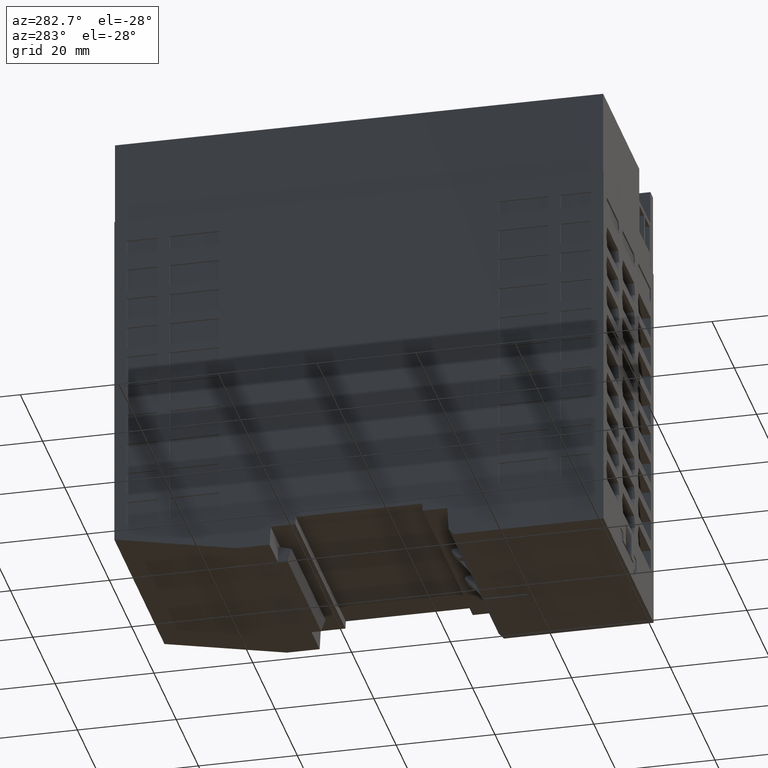
[diagram: clean part render]
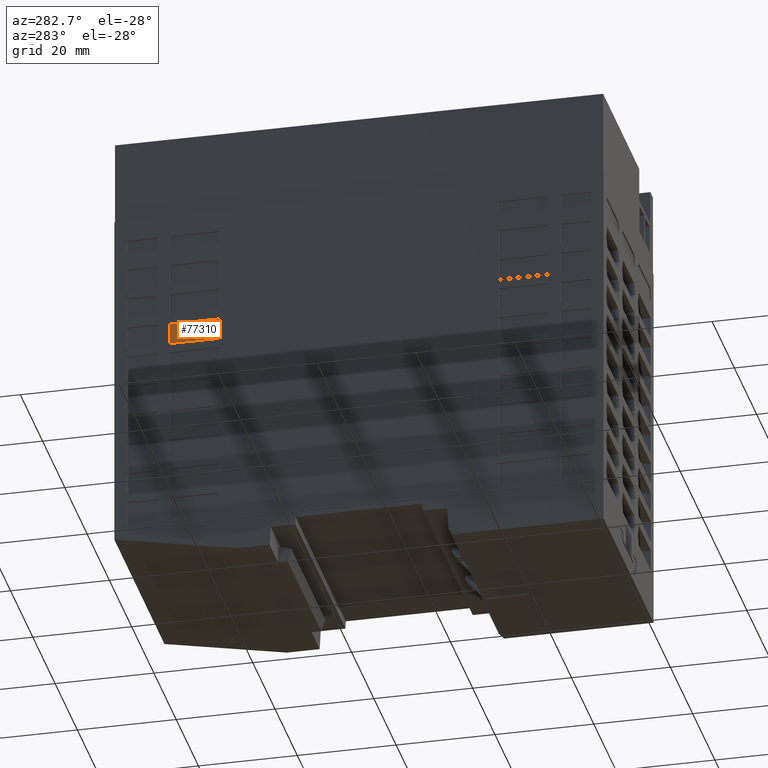
[diagram: same view with one face highlighted and labeled with its STEP entity id]
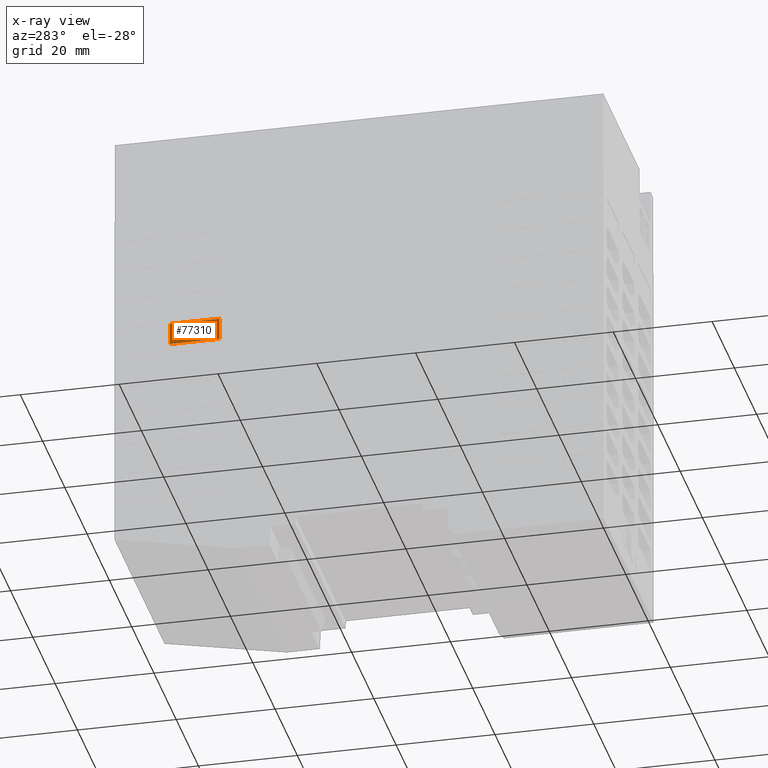
[diagram: x-ray of the same camera — body ghosted, the highlighted face saturated]
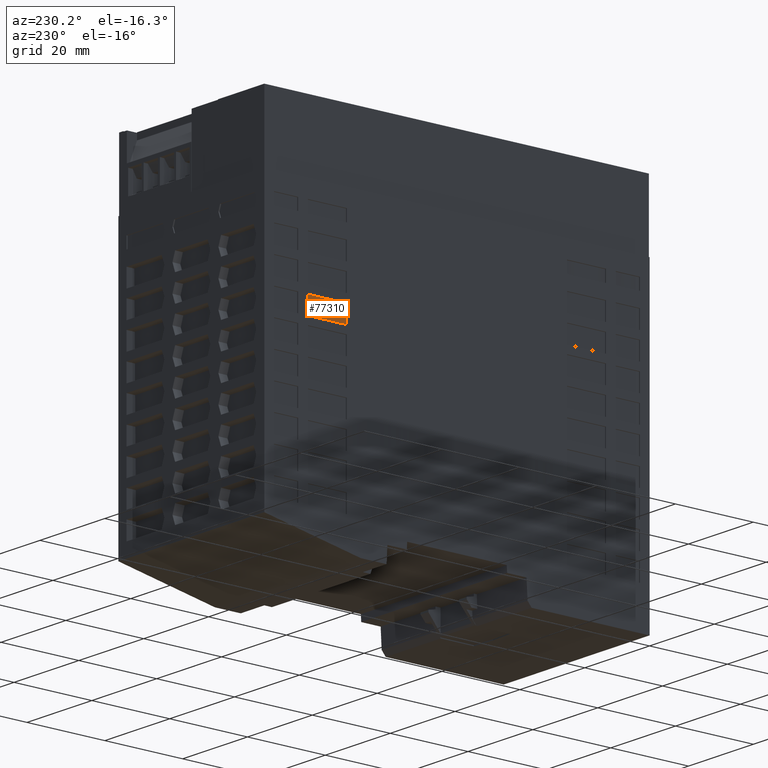
[diagram: same view with one face highlighted and labeled with its STEP entity id]
A machine part, auxiliary view. The second image highlights one B-rep face of the part: STEP entity #77310.
The next image is the same camera in x-ray: the body ghosted, the highlighted face saturated — about 0% of this face is hidden behind the body in this view.
A second angle (auxiliary view) of the same face is appended — the face is thin or edge-on in the first view.
In plain terms, the highlighted planar face has unit normal (-1, -0, -0).
Its self-contained STEP definition (entity closure, byte-faithful):
#76920=CARTESIAN_POINT('',(28.73,65.85,43.9));
#76930=DIRECTION('',(1.,-0.,0.));
#76940=DIRECTION('',(0.,0.,-1.));
#76950=AXIS2_PLACEMENT_3D('',#76920,#76930,#76940);
#76960=PLANE('',#76950);
#76970=CARTESIAN_POINT('',(28.73,43.35942860776,38.29057139224));
#76980=DIRECTION('',(0.,1.,0.));
#76990=VECTOR('',#76980,1.);
#77000=LINE('',#76970,#76990);
#77010=CARTESIAN_POINT('',(28.73,43.35942860776,38.29057139224));
#77020=VERTEX_POINT('',#77010);
#77030=CARTESIAN_POINT('',(28.73,47.84057139224,38.29057139224));
#77040=VERTEX_POINT('',#77030);
#77050=EDGE_CURVE('',#77020,#77040,#77000,.T.);
#77060=ORIENTED_EDGE('',*,*,#77050,.F.);
#77070=CARTESIAN_POINT('',(28.73,47.84057139224,38.29057139224));
#77080=DIRECTION('',(0.,0.,-1.));
#77090=VECTOR('',#77080,1.);
#77100=LINE('',#77070,#77090);
#77110=CARTESIAN_POINT('',(28.73,47.84057139224,28.30942860776));
#77120=VERTEX_POINT('',#77110);
#77130=EDGE_CURVE('',#77040,#77120,#77100,.T.);
#77140=ORIENTED_EDGE('',*,*,#77130,.F.);
#77150=CARTESIAN_POINT('',(28.73,47.84057139224,28.30942860776));
#77160=DIRECTION('',(0.,-1.,0.));
#77170=VECTOR('',#77160,1.);
#77180=LINE('',#77150,#77170);
#77190=CARTESIAN_POINT('',(28.73,43.35942860776,28.30942860776));
#77200=VERTEX_POINT('',#77190);
#77210=EDGE_CURVE('',#77120,#77200,#77180,.T.);
#77220=ORIENTED_EDGE('',*,*,#77210,.F.);
#77230=CARTESIAN_POINT('',(28.73,43.35942860776,28.30942860776));
#77240=DIRECTION('',(0.,0.,1.));
#77250=VECTOR('',#77240,1.);
#77260=LINE('',#77230,#77250);
#77270=EDGE_CURVE('',#77200,#77020,#77260,.T.);
#77280=ORIENTED_EDGE('',*,*,#77270,.F.);
#77290=EDGE_LOOP('',(#77280,#77220,#77140,#77060));
#77300=FACE_OUTER_BOUND('',#77290,.T.);
#77310=ADVANCED_FACE('',(#77300),#76960,.T.);